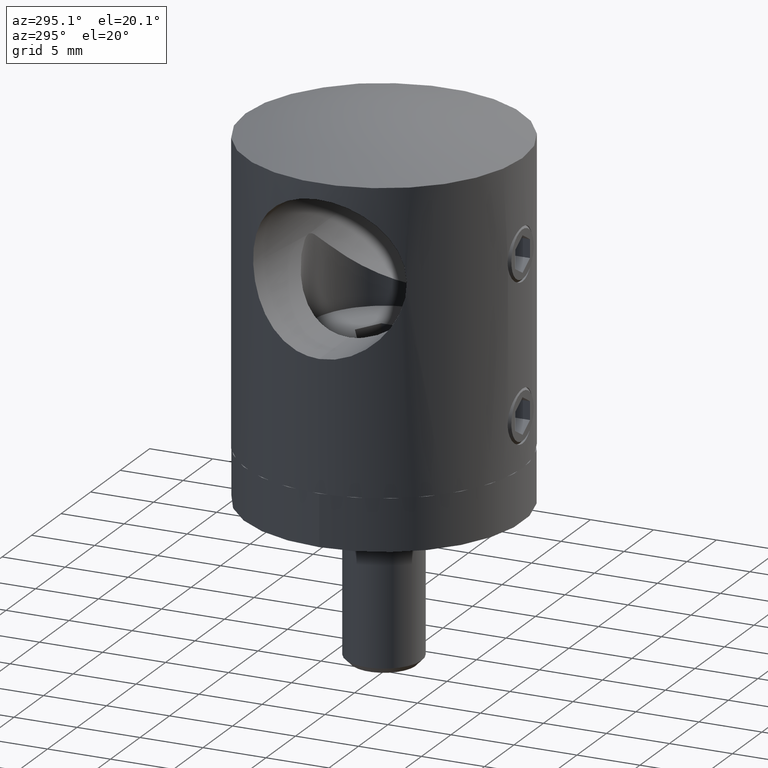
[diagram: clean part render]
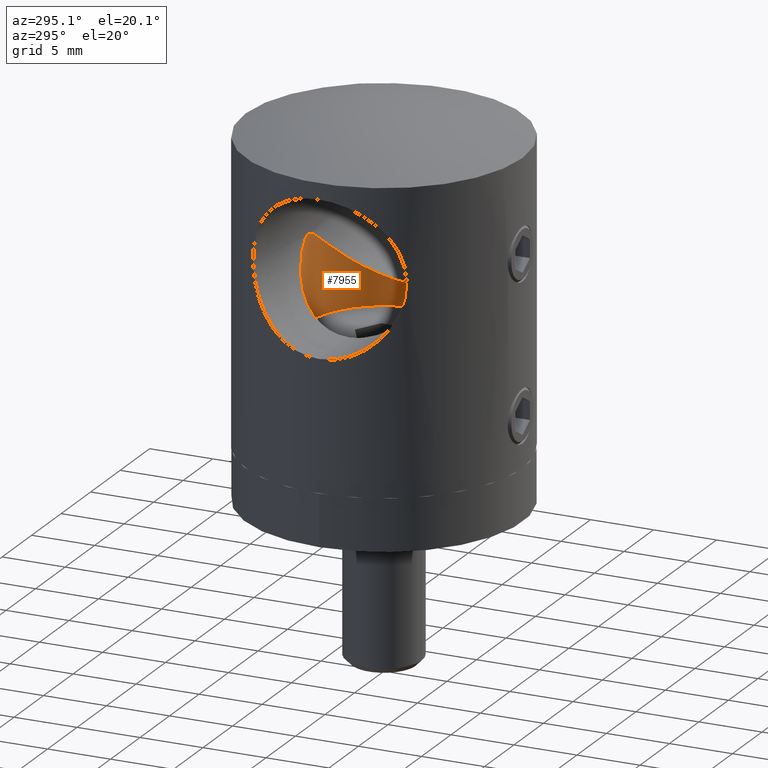
[diagram: same view with one face highlighted and labeled with its STEP entity id]
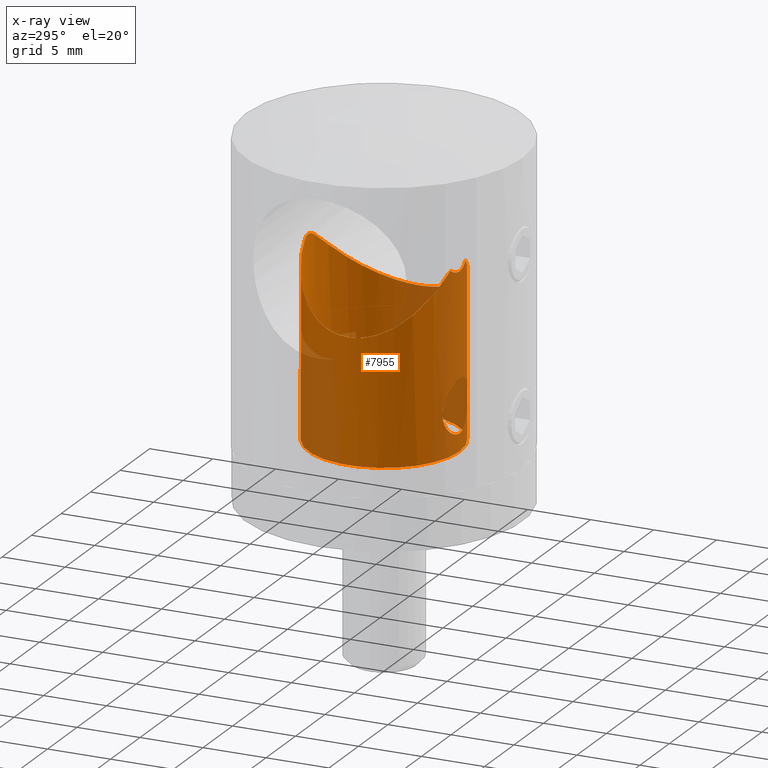
[diagram: x-ray of the same camera — body ghosted, the highlighted face saturated]
A machine part, auxiliary view. The second image highlights one B-rep face of the part: STEP entity #7955.
The next image is the same camera in x-ray: the body ghosted, the highlighted face saturated — about 33% of this face is hidden behind the body in this view.
In plain terms, the highlighted cylindrical surface (bore or boss wall) has radius 6 mm, axis along (0, 0, -1).
Its self-contained STEP definition (entity closure, byte-faithful):
#26 = CARTESIAN_POINT ( 'NONE',  ( -2.100097390676809006, -5.620461810260684921, 4.136718875267628270 ) ) ;
#336 = DIRECTION ( 'NONE',  ( 0.000000000000000000, 1.020538999289458459E-16, -1.000000000000000000 ) ) ;
#489 = CARTESIAN_POINT ( 'NONE',  ( -4.148651835738756510, -4.338122323941330905, 12.10810379984361518 ) ) ;
#636 = CARTESIAN_POINT ( 'NONE',  ( 5.807717456397285538, 1.561183395793758866, 10.48908252357609072 ) ) ;
#712 = CARTESIAN_POINT ( 'NONE',  ( 5.086108987816004401, -3.206154352615140368, 11.19643456853000707 ) ) ;
#768 = FACE_BOUND ( 'NONE', #20393, .T. ) ;
#870 = CARTESIAN_POINT ( 'NONE',  ( 5.453845788692502694, -2.530513086687525615, 10.83645594512943333 ) ) ;
#939 = CARTESIAN_POINT ( 'NONE',  ( 4.056154818305482301, 4.434469408850394423, 12.19798403855078739 ) ) ;
#1446 = CARTESIAN_POINT ( 'NONE',  ( -2.086195265504056540, -5.625710555255435175, 4.277106224398221634 ) ) ;
#1527 = CARTESIAN_POINT ( 'NONE',  ( -1.677500159237450550, -5.764135783203777841, 2.707802910303007238 ) ) ;
#1601 = CARTESIAN_POINT ( 'NONE',  ( -1.992054000542895276, -5.659936331073164517, 4.678887825467362482 ) ) ;
#1673 = CARTESIAN_POINT ( 'NONE',  ( -1.761828530288944705E-16, -5.999999999999996447, 1.900000000000006350 ) ) ;
#1740 = CARTESIAN_POINT ( 'NONE',  ( 2.032103204105484284, -5.645475466979342549, 3.452485469036106647 ) ) ;
#2001 = CARTESIAN_POINT ( 'NONE',  ( -5.345947242857096882, -2.730846562301728842, 10.94208900441108945 ) ) ;
#2152 = CARTESIAN_POINT ( 'NONE',  ( -5.589578985382196663, -2.189955046844227038, 10.70323267675174606 ) ) ;
#2377 = CARTESIAN_POINT ( 'NONE',  ( 5.995776451328669765, 0.3099123428654220747, 10.30415429417565676 ) ) ;
#2453 = CARTESIAN_POINT ( 'NONE',  ( 4.412337729448095658, -4.069675251550926021, 11.85271625671015450 ) ) ;
#2524 = CARTESIAN_POINT ( 'NONE',  ( -1.019037226394214235, 5.915345745975995051, 14.90492701504487094 ) ) ;
#2600 = CARTESIAN_POINT ( 'NONE',  ( 2.519141720066551571, -5.455323266381127745, 13.65448253211365248 ) ) ;
#2677 = CARTESIAN_POINT ( 'NONE',  ( -1.357182424432287871, 5.847034122529608524, 14.65679877961454203 ) ) ;
#3104 = CARTESIAN_POINT ( 'NONE',  ( -0.5472454995192386207, -5.976522812652001804, 1.967890563847575658 ) ) ;
#3178 = CARTESIAN_POINT ( 'NONE',  ( 0.5485102145950182528, -5.976435261253109310, 6.031854882297267295 ) ) ;
#3256 = CARTESIAN_POINT ( 'NONE',  ( 0.1370357647622500730, -6.000018211104128696, 6.100052031729356727 ) ) ;
#3324 = CARTESIAN_POINT ( 'NONE',  ( -1.283385613909026723, -5.862276931221729548, 5.667804354879550033 ) ) ;
#3395 = CARTESIAN_POINT ( 'NONE',  ( 0.6799031944775885128, -5.962726470154967373, 5.991631115680867481 ) ) ;
#3473 = CARTESIAN_POINT ( 'NONE',  ( -1.885684773470322373, -5.696257661656736637, 4.934537723020818056 ) ) ;
#3614 = CARTESIAN_POINT ( 'NONE',  ( 0.5627164796159734861, -5.974529101161555111, 14.37363474076334136 ) ) ;
#3757 = CARTESIAN_POINT ( 'NONE',  ( 1.175527685021283908, -5.884428234727732132, 14.65624738905524893 ) ) ;
#3834 = CARTESIAN_POINT ( 'NONE',  ( 1.264911064067320901, -5.865151319446114897, 14.72369453857596255 ) ) ;
#3872 = CARTESIAN_POINT ( 'NONE',  ( -2.513309521868855256, -5.457960451530766477, 13.65982984228989316 ) ) ;
#4019 = CARTESIAN_POINT ( 'NONE',  ( -5.914074435676525354, 1.097024858808869574, 10.38450323178436285 ) ) ;
#4094 = CARTESIAN_POINT ( 'NONE',  ( 5.937897098304135035, -0.9591532283367267819, 10.36107833749652407 ) ) ;
#4169 = CARTESIAN_POINT ( 'NONE',  ( 1.912226843375741892, -5.696491503194959449, 14.19809113239990950 ) ) ;
#4236 = CARTESIAN_POINT ( 'NONE',  ( 5.902884294256620201, 1.155421326008456262, 10.39550549845728433 ) ) ;
#4379 = CARTESIAN_POINT ( 'NONE',  ( -0.4667924620966295013, 5.984804324095907901, 15.21602659811569325 ) ) ;
#4662 = AXIS2_PLACEMENT_3D ( 'NONE', #14175, #10975, #17457 ) ;
#4796 = CARTESIAN_POINT ( 'NONE',  ( -1.055318436482936217, -5.907600806349170064, 2.179273462287427243 ) ) ;
#4867 = CARTESIAN_POINT ( 'NONE',  ( 2.100005955277874481, -5.620495973474039175, 4.138307198453887281 ) ) ;
#4935 = CARTESIAN_POINT ( 'NONE',  ( 1.264911064067320901, -5.865151319446114897, 14.72369453857596255 ) ) ;
#4942 = CARTESIAN_POINT ( 'NONE',  ( -1.990963533487665194, -5.660313271408461411, 3.318295880892014438 ) ) ;
#5016 = CARTESIAN_POINT ( 'NONE',  ( -2.099901555218821159, -5.620534980703875583, 3.860305477660864071 ) ) ;
#5088 = CARTESIAN_POINT ( 'NONE',  ( 1.388843066986824359, -5.837892061353306516, 2.418972633787930704 ) ) ;
#5162 = CARTESIAN_POINT ( 'NONE',  ( 1.282893921177702623, -5.862382304820059176, 5.668170089699676950 ) ) ;
#5297 = CARTESIAN_POINT ( 'NONE',  ( 0.4532718972291652215, -5.983899536650504558, 14.34638074986309775 ) ) ;
#5435 = AXIS2_PLACEMENT_3D ( 'NONE', #17340, #336, #20901 ) ;
#5447 = CARTESIAN_POINT ( 'NONE',  ( -0.1133048271226559933, -6.000014974720406791, 14.29995721508188744 ) ) ;
#5483 = CARTESIAN_POINT ( 'NONE',  ( -4.694700180960720282, 3.740536793395729642, 11.57822801960870507 ) ) ;
#5558 = CARTESIAN_POINT ( 'NONE',  ( -4.022671686120053103, -4.454974535226733146, 12.22978893750737051 ) ) ;
#5704 = CARTESIAN_POINT ( 'NONE',  ( -1.992287078379846976, 5.661893515845269675, 14.12526147274775745 ) ) ;
#5778 = CARTESIAN_POINT ( 'NONE',  ( -2.736985555426587613, 5.349345952611731292, 13.45182069038134820 ) ) ;
#5837 = FACE_OUTER_BOUND ( 'NONE', #9725, .T. ) ;
#5859 = CARTESIAN_POINT ( 'NONE',  ( 4.985726138990412615, 3.343199364776134885, 11.29442463996197610 ) ) ;
#5929 = CARTESIAN_POINT ( 'NONE',  ( 0.3734069377213897201, 5.989265482983430644, 15.24270616986795446 ) ) ;
#6498 = CARTESIAN_POINT ( 'NONE',  ( -1.389511688007987855, -5.837728522015404486, 2.419587935187492711 ) ) ;
#6576 = CARTESIAN_POINT ( 'NONE',  ( 0.6805891605157750046, -5.962656029525706280, 2.008574322222095532 ) ) ;
#6648 = CARTESIAN_POINT ( 'NONE',  ( -0.6810570200218685200, -5.962585327761368070, 5.991205495255799818 ) ) ;
#6716 = CARTESIAN_POINT ( 'NONE',  ( 1.388036528353559396, -5.838097357248573260, 5.581828602384568683 ) ) ;
#6851 = CARTESIAN_POINT ( 'NONE',  ( 0.8826147044852655776, -5.935581380551953501, 14.49117448359772453 ) ) ;
#6856 = CARTESIAN_POINT ( 'NONE',  ( -1.833344241584947909, -5.714120875558124979, 2.940059396667280112 ) ) ;
#6867 = CARTESIAN_POINT ( 'NONE',  ( -1.264911064067339330, -5.865151319446074041, 14.72369453857597676 ) ) ;
#6967 = B_SPLINE_CURVE_WITH_KNOTS ( 'NONE', 3,
 ( #3834, #3757, #15577, #6851, #10545, #3614, #5297, #8774, #6994, #5447, #18631, #18786, #17235, #7142, #13952, #10408, #20872, #10916 ),
 .UNSPECIFIED., .F., .F.,
 ( 4, 2, 2, 2, 2, 2, 2, 2, 4 ),
 ( 0.0009087473876557810703, 0.001248528510023130117, 0.001588309632390479164, 0.001928090754757828210, 0.002267871877125177474, 0.002607652999492526304, 0.002947434121859875134, 0.003287215244227224831, 0.003626996366594573661 ),
 .UNSPECIFIED. ) ;
#6994 = CARTESIAN_POINT ( 'NONE',  ( 0.1148852733868521853, -5.999984921204156940, 14.30004308227650967 ) ) ;
#7030 = CARTESIAN_POINT ( 'NONE',  ( -5.404072180346545906, 2.634859264747157148, 10.88524980136711129 ) ) ;
#7106 = CARTESIAN_POINT ( 'NONE',  ( -4.514711676808830454, -3.956002903141150551, 11.75328965855303309 ) ) ;
#7142 = CARTESIAN_POINT ( 'NONE',  ( -0.7767092722544718386, -5.950499131120660756, 14.44561984550100853 ) ) ;
#7182 = CARTESIAN_POINT ( 'NONE',  ( -1.907797727893162154, -5.697926366024423039, 14.20193268732672998 ) ) ;
#7329 = CARTESIAN_POINT ( 'NONE',  ( -5.918360028311647980, -1.008343787436277950, 10.38028863841231875 ) ) ;
#7403 = CARTESIAN_POINT ( 'NONE',  ( 4.306318209007764075, 4.193255255899513756, 11.95575110796323415 ) ) ;
#7476 = CARTESIAN_POINT ( 'NONE',  ( -2.446229407336026895, 5.488255245201751009, 13.72139055253271067 ) ) ;
#7556 = CARTESIAN_POINT ( 'NONE',  ( 1.264911064067320901, -5.865151319446114897, 14.72369453857596255 ) ) ;
#7707 = CARTESIAN_POINT ( 'NONE',  ( 1.451721868584825215, 5.824105846830125444, 14.58084361014225472 ) ) ;
#7955 = ADVANCED_FACE ( 'NONE', ( #5837, #768, #13250 ), #20345, .F. ) ;
#8163 = CARTESIAN_POINT ( 'NONE',  ( 0.000000000000000000, 6.000000000000000000, 0.4999999999999976130 ) ) ;
#8338 = CARTESIAN_POINT ( 'NONE',  ( -1.056572057962526623, -5.907370391185569503, 5.819974034561115950 ) ) ;
#8353 = VERTEX_POINT ( 'NONE', #6867 ) ;
#8412 = CARTESIAN_POINT ( 'NONE',  ( 0.1399303184415925105, -5.999999999999996447, 1.900000000000006573 ) ) ;
#8730 = CARTESIAN_POINT ( 'NONE',  ( -5.950296952864830402, -0.7988041485098276162, 10.34888276150870468 ) ) ;
#8774 = CARTESIAN_POINT ( 'NONE',  ( 0.2299467678889597633, -5.996635186626020797, 14.30956178725895001 ) ) ;
#8882 = CARTESIAN_POINT ( 'NONE',  ( -5.985698333706956475, 0.4651348737191030036, 10.31406820802559032 ) ) ;
#9027 = CARTESIAN_POINT ( 'NONE',  ( -5.991591046540439613, -0.3807343246483580468, 10.30827206158404152 ) ) ;
#9109 = CARTESIAN_POINT ( 'NONE',  ( 0.7661013249264129188, 5.954079012048651975, 15.07060193137590076 ) ) ;
#9180 = CARTESIAN_POINT ( 'NONE',  ( 4.656862436866068045, 3.787555119558791539, 11.61506419267940515 ) ) ;
#9260 = CARTESIAN_POINT ( 'NONE',  ( -0.2620374366684900536, 5.998070947804659880, 15.28948799271528536 ) ) ;
#9329 = CARTESIAN_POINT ( 'NONE',  ( 4.877393601296901693, -3.513269415216979219, 11.40038333103255397 ) ) ;
#9406 = CARTESIAN_POINT ( 'NONE',  ( 1.772379662049505367, 5.734664387072845315, 14.31597426755820202 ) ) ;
#9711 = ORIENTED_EDGE ( 'NONE', *, *, #15147, .F. ) ;
#9725 = EDGE_LOOP ( 'NONE', ( #11626 ) ) ;
#9832 = CARTESIAN_POINT ( 'NONE',  ( -1.761828530288944705E-16, -5.999999999999996447, 1.900000000000006350 ) ) ;
#9902 = CARTESIAN_POINT ( 'NONE',  ( -0.6812341139050360761, -5.962577447961940891, 2.008811109739972789 ) ) ;
#10039 = CARTESIAN_POINT ( 'NONE',  ( 2.085970634324528561, -5.625794041661614564, 4.278667550940385311 ) ) ;
#10114 = CARTESIAN_POINT ( 'NONE',  ( 1.833295944888410300, -5.714140928245527107, 2.939791683323966787 ) ) ;
#10137 = CIRCLE ( 'NONE', #5435, 5.999999999999998224 ) ;
#10190 = CARTESIAN_POINT ( 'NONE',  ( 0.2773106023340062842, -5.995110587510875888, 1.913857049664068555 ) ) ;
#10408 = CARTESIAN_POINT ( 'NONE',  ( -1.078988912916293952, -5.903045030256127035, 14.59489077300873205 ) ) ;
#10442 = CARTESIAN_POINT ( 'NONE',  ( -1.597670778216226051, -5.793386513871958243, 14.47259982237476095 ) ) ;
#10507 = CARTESIAN_POINT ( 'NONE',  ( -5.068403596444041703, -3.233880712787568612, 11.21374151570879540 ) ) ;
#10545 = CARTESIAN_POINT ( 'NONE',  ( 0.7772167334863110399, -5.950427040662420453, 14.44584029581471363 ) ) ;
#10803 = CARTESIAN_POINT ( 'NONE',  ( 4.769559754092283832, 3.644961848606230070, 11.50529522117298775 ) ) ;
#10878 = CARTESIAN_POINT ( 'NONE',  ( -3.575787970918264946, 4.830183781260966036, 12.65954308935619643 ) ) ;
#10907 = B_SPLINE_CURVE_WITH_KNOTS ( 'NONE', 3,
 ( #20545, #10442, #7182, #3872, #18969, #17277, #15688, #5558, #489, #12370, #7106, #18892, #10507, #2001, #20699, #2152, #12304, #13988, #17426, #7329, #8730, #9027, #20834, #14142, #8882, #4019, #15828, #17131, #7030, #13918, #15613, #18823, #5483, #13843, #12603, #10878, #19360, #5778, #7476, #5704, #19192, #21218, #2677, #2524, #19277, #4379, #9260, #17494, #17796, #5929, #15980, #9109, #21142, #17569, #7707, #9406, #16050, #20911, #11015, #19433, #11092, #939, #7403, #9180, #10803, #5859, #14219, #14505, #14363, #636, #4236, #12532, #2377, #16119, #17720, #4094, #15907, #20989, #870, #712, #9329, #12825, #2453, #21058, #12754, #14431, #19508, #14291, #2600, #4169, #17641, #7556 ),
 .UNSPECIFIED., .F., .F.,
 ( 4, 2, 2, 2, 2, 2, 2, 2, 2, 2, 2, 2, 2, 2, 2, 2, 2, 2, 2, 2, 2, 2, 2, 2, 2, 2, 2, 2, 2, 2, 2, 2, 2, 2, 2, 2, 2, 2, 2, 2, 2, 2, 2, 2, 2, 4 ),
 ( 0.02322871737572002049, 0.02450615635311004584, 0.02578359533050007119, 0.02706103430789010000, 0.02769975379658511094, 0.02833847328528012188, 0.02961591226267014376, 0.03025463175136515817, 0.03089335124006017258, 0.03153207072875518352, 0.03217079021745019446, 0.03280950970614520540, 0.03344822919484021634, 0.03472566817223024516, 0.03600310714962026704, 0.03664182663831527798, 0.03728054612701029585, 0.03855798510440032467, 0.03983542408179034655, 0.04111286305918037537, 0.04175158254787538631, 0.04239030203657039031, 0.04302902152526540125, 0.04366774101396041913, 0.04398710075830792460, 0.04430646050265543007, 0.04494517999135044795, 0.04558389948004545889, 0.04622261896874046982, 0.04750005794613049170, 0.04877749692352052052, 0.05005493590091054934, 0.05069365538960556722, 0.05133237487830058510, 0.05260981385569060698, 0.05388725283308064273, 0.05452597232177564673, 0.05516469181047066461, 0.05644213078786069343, 0.05771956976525072225, 0.05899700874264075801, 0.05963572823133577588, 0.06027444772003079376, 0.06155188669742082258, 0.06282932567481085140, 0.06410676465220088716 ),
 .UNSPECIFIED. ) ;
#10916 = CARTESIAN_POINT ( 'NONE',  ( -1.264911064067339330, -5.865151319446074041, 14.72369453857597676 ) ) ;
#10975 = DIRECTION ( 'NONE',  ( -0.000000000000000000, 1.020538999289461417E-16, -1.000000000000000000 ) ) ;
#11015 = CARTESIAN_POINT ( 'NONE',  ( 2.678942672394200919, 5.378707453403085204, 13.50570936899194763 ) ) ;
#11092 = CARTESIAN_POINT ( 'NONE',  ( 3.526116577567911303, 4.866560667400898765, 12.70702770809061910 ) ) ;
#11626 = ORIENTED_EDGE ( 'NONE', *, *, #17942, .T. ) ;
#11673 = CARTESIAN_POINT ( 'NONE',  ( -0.1386258689238627495, -5.999981683544564959, 6.099947667266899742 ) ) ;
#11747 = CARTESIAN_POINT ( 'NONE',  ( 1.054979748196496869, -5.907653145361189573, 2.179116733785584348 ) ) ;
#11818 = CARTESIAN_POINT ( 'NONE',  ( 1.056301083882024816, -5.907416619898389953, 5.820119853568162860 ) ) ;
#11839 = ORIENTED_EDGE ( 'NONE', *, *, #14153, .F. ) ;
#11899 = CARTESIAN_POINT ( 'NONE',  ( 1.991790499454956453, -5.660027428170494979, 4.679568982034620461 ) ) ;
#12304 = CARTESIAN_POINT ( 'NONE',  ( -5.659557308020426447, -2.002594155565410539, 10.63454632885177276 ) ) ;
#12370 = CARTESIAN_POINT ( 'NONE',  ( -4.394411648217270816, -4.088980755355672514, 11.87010875707530211 ) ) ;
#12532 = CARTESIAN_POINT ( 'NONE',  ( 5.980685677498828845, 0.5255085013151691298, 10.31899852162832687 ) ) ;
#12603 = CARTESIAN_POINT ( 'NONE',  ( -4.101423522932065246, 4.392637027943441019, 12.15424527299566471 ) ) ;
#12754 = CARTESIAN_POINT ( 'NONE',  ( 4.039811638970111751, -4.439487194943680493, 12.21325310840824052 ) ) ;
#12825 = CARTESIAN_POINT ( 'NONE',  ( 4.532680814993542029, -3.935455781845091483, 11.73582858438165921 ) ) ;
#13245 = CARTESIAN_POINT ( 'NONE',  ( -0.2773110508732145596, -5.995114773543327225, 1.913844450117063500 ) ) ;
#13250 = FACE_OUTER_BOUND ( 'NONE', #16474, .T. ) ;
#13313 = CARTESIAN_POINT ( 'NONE',  ( -0.9337857770029847071, -5.928263369488833590, 5.885943294885849220 ) ) ;
#13386 = CARTESIAN_POINT ( 'NONE',  ( -1.388251816607979583, -5.838037281970524184, 5.581575950864486657 ) ) ;
#13459 = CARTESIAN_POINT ( 'NONE',  ( -1.669065092636238035, -5.763722404570108537, 5.281706429908800793 ) ) ;
#13532 = CARTESIAN_POINT ( 'NONE',  ( -2.031893931028321276, -5.645550960297864407, 3.451744546214746912 ) ) ;
#13843 = CARTESIAN_POINT ( 'NONE',  ( -4.348905790734335142, 4.149014291462098214, 11.91445850049536226 ) ) ;
#13918 = CARTESIAN_POINT ( 'NONE',  ( -5.120137208872967527, 3.133817932039145937, 11.16307118213196681 ) ) ;
#13952 = CARTESIAN_POINT ( 'NONE',  ( -0.8801224840784377390, -5.935953345204749709, 14.49002073084944620 ) ) ;
#13988 = CARTESIAN_POINT ( 'NONE',  ( -5.781654944826907894, -1.616613241820924030, 10.51464520929871682 ) ) ;
#14142 = CARTESIAN_POINT ( 'NONE',  ( -5.998444786203073420, 0.2514064993559348982, 10.30152971741273760 ) ) ;
#14153 = EDGE_CURVE ( 'NONE', #15625, #15625, #14325, .T. ) ;
#14175 = CARTESIAN_POINT ( 'NONE',  ( 0.000000000000000000, 0.000000000000000000, 16.39999999999999858 ) ) ;
#14219 = CARTESIAN_POINT ( 'NONE',  ( 5.089123062623678528, 3.183904618875585957, 11.19339108233792679 ) ) ;
#14291 = CARTESIAN_POINT ( 'NONE',  ( 2.814498098718402730, -5.309217689627437231, 13.37966389919894183 ) ) ;
#14325 = B_SPLINE_CURVE_WITH_KNOTS ( 'NONE', 3,
 ( #9832, #21649, #13245, #3104, #9902, #14923, #4796, #16598, #6498, #1527, #6856, #4942, #13532, #20304, #5016, #26, #1446, #18421, #1601, #3473, #18490, #13459, #21796, #13386, #3324, #8338, #13313, #6648, #16739, #15138, #11673, #3256, #21723, #3178, #3395, #15285, #11818, #5162, #6716, #14990, #21868, #11899, #21940, #10039, #4867, #15214, #15065, #1740, #16956, #10114, #16664, #5088, #16881, #11747, #20166, #6576, #18357, #10190, #8412, #1673 ),
 .UNSPECIFIED., .T., .F.,
 ( 4, 2, 2, 2, 2, 2, 2, 2, 2, 2, 2, 2, 2, 2, 2, 2, 2, 2, 2, 2, 2, 2, 2, 2, 2, 2, 2, 2, 2, 4 ),
 ( 0.000000000000000000, 0.0004135997285890948266, 0.0008271994571781894363, 0.001240799185767284046, 0.001654398914356378439, 0.002481598371534567225, 0.002895198100123660967, 0.003308797828712754709, 0.003722397557301848452, 0.004135997285890940893, 0.004549597014480035069, 0.004963196743069128378, 0.005376796471658221686, 0.005790396200247314128, 0.006203995928836408304, 0.006617595657425500745, 0.007031195386014594054, 0.007444795114603688230, 0.007858394843192780671, 0.008271994571781873112, 0.009099194028960059730, 0.009512793757549153906, 0.009926393486138248082, 0.01033999321472734052, 0.01075359294331643470, 0.01158079240049461958, 0.01199439212908371376, 0.01240799185767280793, 0.01282159158626190038, 0.01323519131485099282 ),
 .UNSPECIFIED. ) ;
#14363 = CARTESIAN_POINT ( 'NONE',  ( 5.542520864166999850, 2.333953324065714430, 10.74943357799607035 ) ) ;
#14431 = CARTESIAN_POINT ( 'NONE',  ( 3.651500832452122758, -4.773158304551675890, 12.58705571074295193 ) ) ;
#14505 = CARTESIAN_POINT ( 'NONE',  ( 5.377202813851559959, 2.689122268177650987, 10.91158296035250430 ) ) ;
#14923 = CARTESIAN_POINT ( 'NONE',  ( -0.9351004188317558752, -5.928068568057642374, 2.114661748824997911 ) ) ;
#14990 = CARTESIAN_POINT ( 'NONE',  ( 1.679082131009260959, -5.763747723864383055, 5.290733017625368184 ) ) ;
#15065 = CARTESIAN_POINT ( 'NONE',  ( 2.086440083120672195, -5.625620362231067872, 3.724349182297990168 ) ) ;
#15138 = CARTESIAN_POINT ( 'NONE',  ( -0.2777402781516093988, -5.995120906657177784, 6.086177050655781073 ) ) ;
#15147 = EDGE_CURVE ( 'NONE', #8353, #17314, #10907, .T. ) ;
#15214 = CARTESIAN_POINT ( 'NONE',  ( 2.099994040831213660, -5.620500425096842889, 3.861512015611135329 ) ) ;
#15285 = CARTESIAN_POINT ( 'NONE',  ( 0.9335114993840620823, -5.928316084038137035, 5.886112174640409478 ) ) ;
#15577 = CARTESIAN_POINT ( 'NONE',  ( 1.081245972257981913, -5.902630107774375467, 14.59624538361840962 ) ) ;
#15613 = CARTESIAN_POINT ( 'NONE',  ( -5.018209330528944356, 3.294208645813299086, 11.26269665249627572 ) ) ;
#15625 = VERTEX_POINT ( 'NONE', #21758 ) ;
#15688 = CARTESIAN_POINT ( 'NONE',  ( -3.636098034188535166, -4.784718748379322761, 12.60180303829232606 ) ) ;
#15828 = CARTESIAN_POINT ( 'NONE',  ( -5.823669825702252112, 1.500588229899905812, 10.47340437581737227 ) ) ;
#15907 = CARTESIAN_POINT ( 'NONE',  ( 5.853872938890657629, -1.378049250078598353, 10.44371644003605049 ) ) ;
#15980 = CARTESIAN_POINT ( 'NONE',  ( 0.4751520217798753110, 5.981949731203158649, 15.20485714661241694 ) ) ;
#16050 = CARTESIAN_POINT ( 'NONE',  ( 1.928029265789989566, 5.684115666916119913, 14.18139453505601466 ) ) ;
#16119 = CARTESIAN_POINT ( 'NONE',  ( 6.002658118569156542, -0.1160880103350165754, 10.29738546987163339 ) ) ;
#16474 = EDGE_LOOP ( 'NONE', ( #17969, #9711 ) ) ;
#16598 = CARTESIAN_POINT ( 'NONE',  ( -1.282773082496065919, -5.862417377531362384, 2.331696866173553317 ) ) ;
#16664 = CARTESIAN_POINT ( 'NONE',  ( 1.677594955765173923, -5.764126152619216903, 2.707790437232913572 ) ) ;
#16739 = CARTESIAN_POINT ( 'NONE',  ( -0.5499592264330720459, -5.976299791409972251, 6.031457407392960768 ) ) ;
#16881 = CARTESIAN_POINT ( 'NONE',  ( 1.281623710314714781, -5.862660541099052658, 2.330856865501472530 ) ) ;
#16956 = CARTESIAN_POINT ( 'NONE',  ( 1.991246174694208282, -5.660214997163480533, 3.319050225171495505 ) ) ;
#17131 = CARTESIAN_POINT ( 'NONE',  ( -5.566520937633477217, 2.276123881821263684, 10.72588678268596496 ) ) ;
#17235 = CARTESIAN_POINT ( 'NONE',  ( -0.5615677229876694376, -5.974642993147980086, 14.37329805486746714 ) ) ;
#17277 = CARTESIAN_POINT ( 'NONE',  ( -3.367008295880015822, -4.976958175636694293, 12.85911165938807876 ) ) ;
#17314 = VERTEX_POINT ( 'NONE', #4935 ) ;
#17340 = CARTESIAN_POINT ( 'NONE',  ( 0.000000000000000000, 1.622657008870243868E-15, 0.4999999999999970024 ) ) ;
#17426 = CARTESIAN_POINT ( 'NONE',  ( -5.833782839444030976, -1.417998730812816799, 10.46342172039293672 ) ) ;
#17457 = DIRECTION ( 'NONE',  ( 0.000000000000000000, 1.000000000000000000, 0.000000000000000000 ) ) ;
#17494 = CARTESIAN_POINT ( 'NONE',  ( 0.05797874900377519153, 6.000668141377462739, 15.30364017751332639 ) ) ;
#17511 = EDGE_CURVE ( 'NONE', #17314, #8353, #6967, .T. ) ;
#17569 = CARTESIAN_POINT ( 'NONE',  ( 1.286232487806445279, 5.863110917657478716, 14.71184017309867009 ) ) ;
#17641 = CARTESIAN_POINT ( 'NONE',  ( 1.600712823535348939, -5.792730449506018786, 14.47030434767155427 ) ) ;
#17720 = CARTESIAN_POINT ( 'NONE',  ( 5.994764174703637316, -0.3277982703724622859, 10.30515088502910892 ) ) ;
#17796 = CARTESIAN_POINT ( 'NONE',  ( 0.1664089112603251430, 5.998586653625031850, 15.29203420907047928 ) ) ;
#17942 = EDGE_CURVE ( 'NONE', #21150, #21150, #10137, .T. ) ;
#17969 = ORIENTED_EDGE ( 'NONE', *, *, #17511, .F. ) ;
#18357 = CARTESIAN_POINT ( 'NONE',  ( 0.5468734143387919966, -5.976552651432201380, 1.967803393346847063 ) ) ;
#18421 = CARTESIAN_POINT ( 'NONE',  ( -2.032077313730783708, -5.645484189008467268, 4.547412400692980583 ) ) ;
#18490 = CARTESIAN_POINT ( 'NONE',  ( -1.820638573103269930, -5.717652440165347016, 5.055379003986189446 ) ) ;
#18631 = CARTESIAN_POINT ( 'NONE',  ( -0.2262443608422108621, -5.996778746169611374, 14.30915134030809988 ) ) ;
#18786 = CARTESIAN_POINT ( 'NONE',  ( -0.4498692888265912737, -5.984159044034100816, 14.34562606823417674 ) ) ;
#18823 = CARTESIAN_POINT ( 'NONE',  ( -4.805692951973775884, 3.597158703547624015, 11.47007651703237308 ) ) ;
#18892 = CARTESIAN_POINT ( 'NONE',  ( -4.859172907459102575, -3.538186065332967978, 11.41815865016066667 ) ) ;
#18969 = CARTESIAN_POINT ( 'NONE',  ( -2.806376894923878318, -5.313295236498648322, 13.38721115035933273 ) ) ;
#19192 = CARTESIAN_POINT ( 'NONE',  ( -1.837964678742315616, 5.713950889940558220, 14.25977914527570434 ) ) ;
#19277 = CARTESIAN_POINT ( 'NONE',  ( -0.8428342894105453897, 5.943518180419837371, 15.02367610893894501 ) ) ;
#19360 = CARTESIAN_POINT ( 'NONE',  ( -3.301266255638069858, 5.020780134672567563, 12.92163397531766833 ) ) ;
#19433 = CARTESIAN_POINT ( 'NONE',  ( 3.248385284976788689, 5.055217181448757202, 12.97185306989035780 ) ) ;
#19508 = CARTESIAN_POINT ( 'NONE',  ( 3.380504423964953098, -4.968036016686654399, 12.84629196830138476 ) ) ;
#20166 = CARTESIAN_POINT ( 'NONE',  ( 0.9349122421464485244, -5.928103206872792796, 2.114551264284957099 ) ) ;
#20304 = CARTESIAN_POINT ( 'NONE',  ( -2.086293483836123119, -5.625674900985016436, 3.723311567177205017 ) ) ;
#20345 = CYLINDRICAL_SURFACE ( 'NONE', #4662, 5.999999999999998224 ) ;
#20393 = EDGE_LOOP ( 'NONE', ( #11839 ) ) ;
#20545 = CARTESIAN_POINT ( 'NONE',  ( -1.264911064067339330, -5.865151319446074041, 14.72369453857597676 ) ) ;
#20699 = CARTESIAN_POINT ( 'NONE',  ( -5.432840144034337015, -2.554123002205204607, 10.85693976831986340 ) ) ;
#20834 = CARTESIAN_POINT ( 'NONE',  ( -6.001283800260943657, -0.1706980661016201939, 10.29873724662283685 ) ) ;
#20872 = CARTESIAN_POINT ( 'NONE',  ( -1.175197539347628384, -5.884499435774836584, 14.65599826684872120 ) ) ;
#20901 = DIRECTION ( 'NONE',  ( 0.000000000000000000, 1.000000000000000000, 1.084202172485504804E-16 ) ) ;
#20911 = CARTESIAN_POINT ( 'NONE',  ( 2.385812162248584389, 5.514868211023970623, 13.77669042793656473 ) ) ;
#20989 = CARTESIAN_POINT ( 'NONE',  ( 5.613096513743254690, -2.158702306415099859, 10.68018025331067200 ) ) ;
#21058 = CARTESIAN_POINT ( 'NONE',  ( 4.166182091072015758, -4.321331701666521141, 12.09115579078958191 ) ) ;
#21142 = CARTESIAN_POINT ( 'NONE',  ( 0.9432332628313789824, 5.927965473695977039, 14.95598525748997254 ) ) ;
#21150 = VERTEX_POINT ( 'NONE', #8163 ) ;
#21218 = CARTESIAN_POINT ( 'NONE',  ( -1.520431543465083024, 5.806516757453923816, 14.52539518162999244 ) ) ;
#21649 = CARTESIAN_POINT ( 'NONE',  ( -0.1399303184415933432, -5.999999999999997335, 1.900000000000006128 ) ) ;
#21723 = CARTESIAN_POINT ( 'NONE',  ( 0.2760850920997885982, -5.995199655506466385, 6.086402343784764746 ) ) ;
#21758 = CARTESIAN_POINT ( 'NONE',  ( 0.000000000000000000, -5.999999999999996447, 1.900000000000005906 ) ) ;
#21796 = CARTESIAN_POINT ( 'NONE',  ( -1.581278183707603313, -5.788737489101015044, 5.388590976637336993 ) ) ;
#21868 = CARTESIAN_POINT ( 'NONE',  ( 1.832704397464458124, -5.714346342055216077, 5.061775951773686444 ) ) ;
#21940 = CARTESIAN_POINT ( 'NONE',  ( 2.031781744484791652, -5.645590759985877227, 4.548445105721368620 ) ) ;